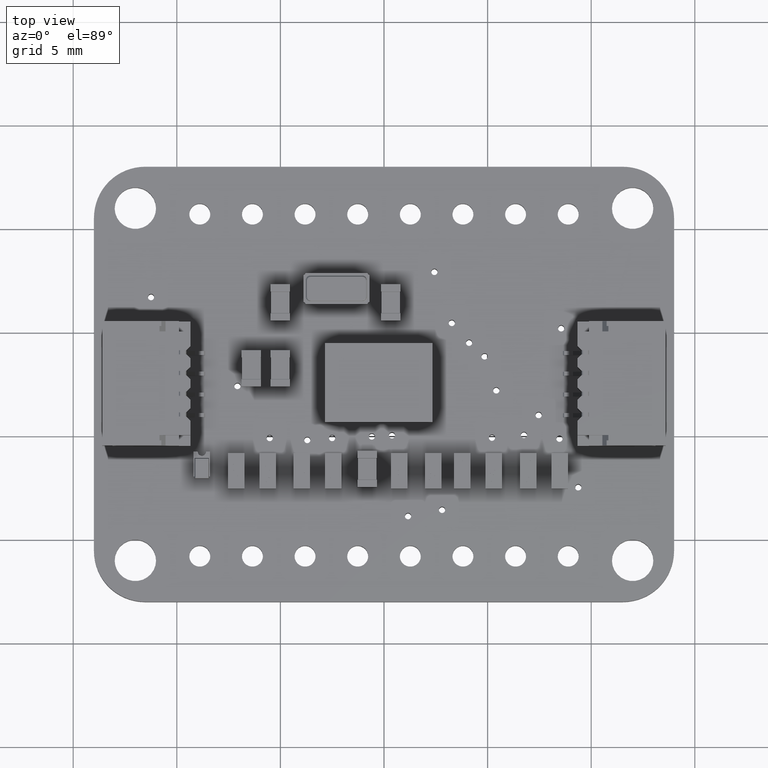
[diagram: clean part render]
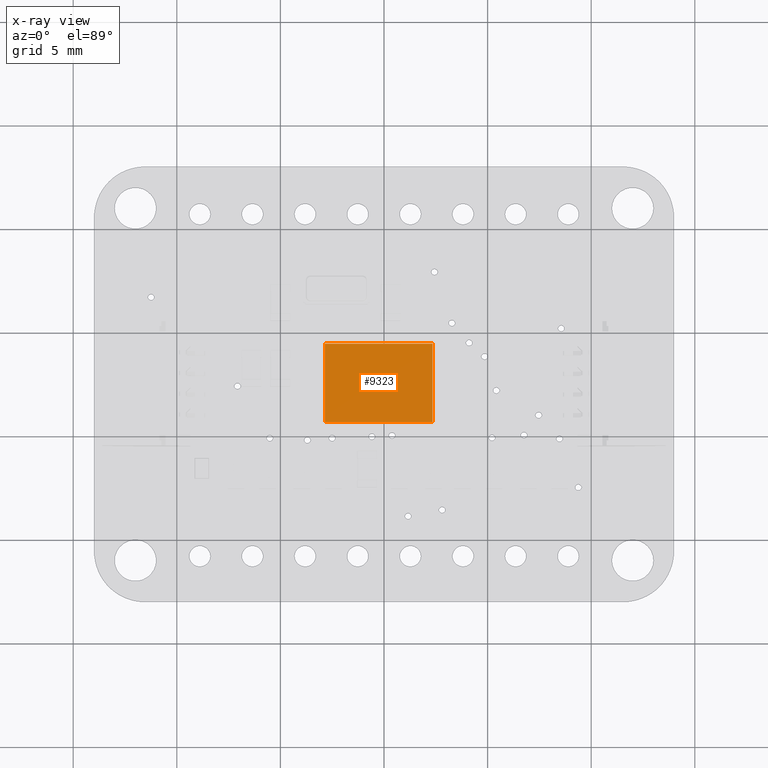
[diagram: x-ray — body ghosted, one internal face saturated and labeled with its STEP entity id]
A machine part, top view, then the same camera in x-ray: the body is ghosted and one INTERNAL B-rep face — a face not visible from any outside direction — is saturated and labeled: STEP entity #9323.
In plain terms, the highlighted planar face has unit normal (0, 0, -1).
Its self-contained STEP definition (entity closure, byte-faithful):
#9323 = ADVANCED_FACE('',(#9324),#9358,.F.);
#9324 = FACE_BOUND('',#9325,.T.);
#9325 = EDGE_LOOP('',(#9326,#9336,#9344,#9352));
#9326 = ORIENTED_EDGE('',*,*,#9327,.F.);
#9327 = EDGE_CURVE('',#9328,#9330,#9332,.T.);
#9328 = VERTEX_POINT('',#9329);
#9329 = CARTESIAN_POINT('',(-2.6,0.13,-1.9));
#9330 = VERTEX_POINT('',#9331);
#9331 = CARTESIAN_POINT('',(2.6,0.13,-1.9));
#9332 = LINE('',#9333,#9334);
#9333 = CARTESIAN_POINT('',(-2.6,0.13,-1.9));
#9334 = VECTOR('',#9335,1.);
#9335 = DIRECTION('',(1.,0.,0.));
#9336 = ORIENTED_EDGE('',*,*,#9337,.F.);
#9337 = EDGE_CURVE('',#9338,#9328,#9340,.T.);
#9338 = VERTEX_POINT('',#9339);
#9339 = CARTESIAN_POINT('',(-2.6,0.13,1.9));
#9340 = LINE('',#9341,#9342);
#9341 = CARTESIAN_POINT('',(-2.6,0.13,1.9));
#9342 = VECTOR('',#9343,1.);
#9343 = DIRECTION('',(0.,0.,-1.));
#9344 = ORIENTED_EDGE('',*,*,#9345,.F.);
#9345 = EDGE_CURVE('',#9346,#9338,#9348,.T.);
#9346 = VERTEX_POINT('',#9347);
#9347 = CARTESIAN_POINT('',(2.6,0.13,1.9));
#9348 = LINE('',#9349,#9350);
#9349 = CARTESIAN_POINT('',(-2.6,0.13,1.9));
#9350 = VECTOR('',#9351,1.);
#9351 = DIRECTION('',(-1.,0.,0.));
#9352 = ORIENTED_EDGE('',*,*,#9353,.F.);
#9353 = EDGE_CURVE('',#9330,#9346,#9354,.T.);
#9354 = LINE('',#9355,#9356);
#9355 = CARTESIAN_POINT('',(2.6,0.13,1.9));
#9356 = VECTOR('',#9357,1.);
#9357 = DIRECTION('',(0.,0.,1.));
#9358 = PLANE('',#9359);
#9359 = AXIS2_PLACEMENT_3D('',#9360,#9361,#9362);
#9360 = CARTESIAN_POINT('',(0.,0.13,0.));
#9361 = DIRECTION('',(0.,-1.,0.));
#9362 = DIRECTION('',(0.,0.,-1.));